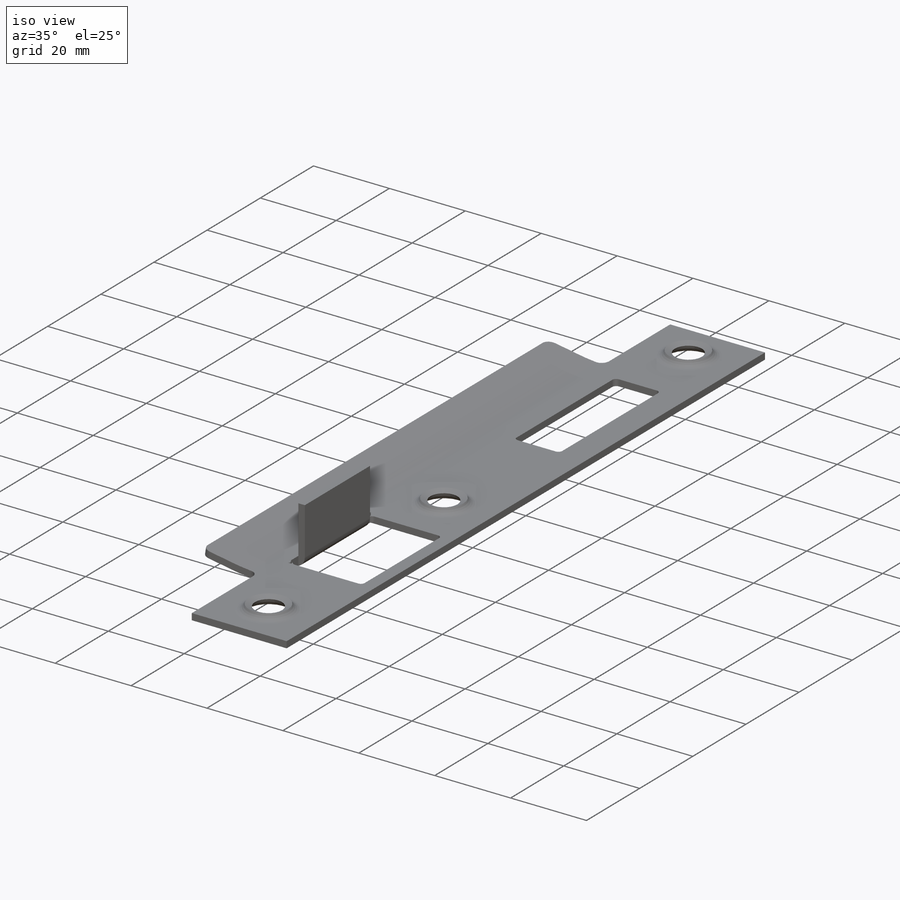
[diagram: iso view]
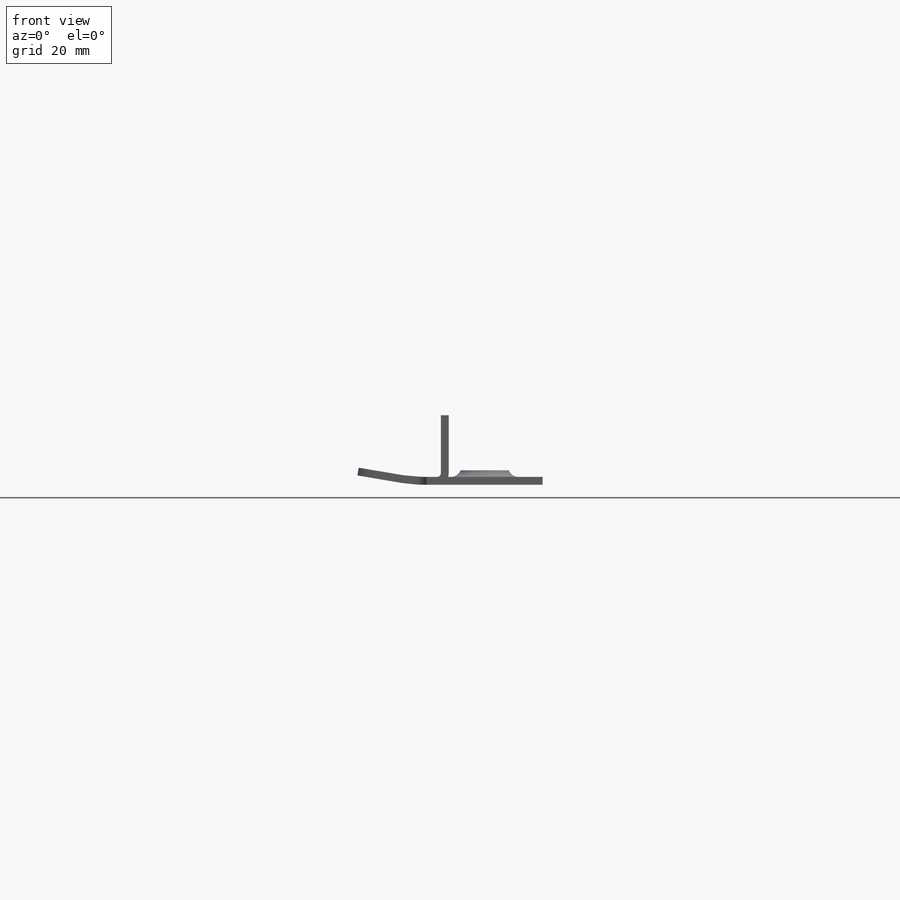
[diagram: front view]
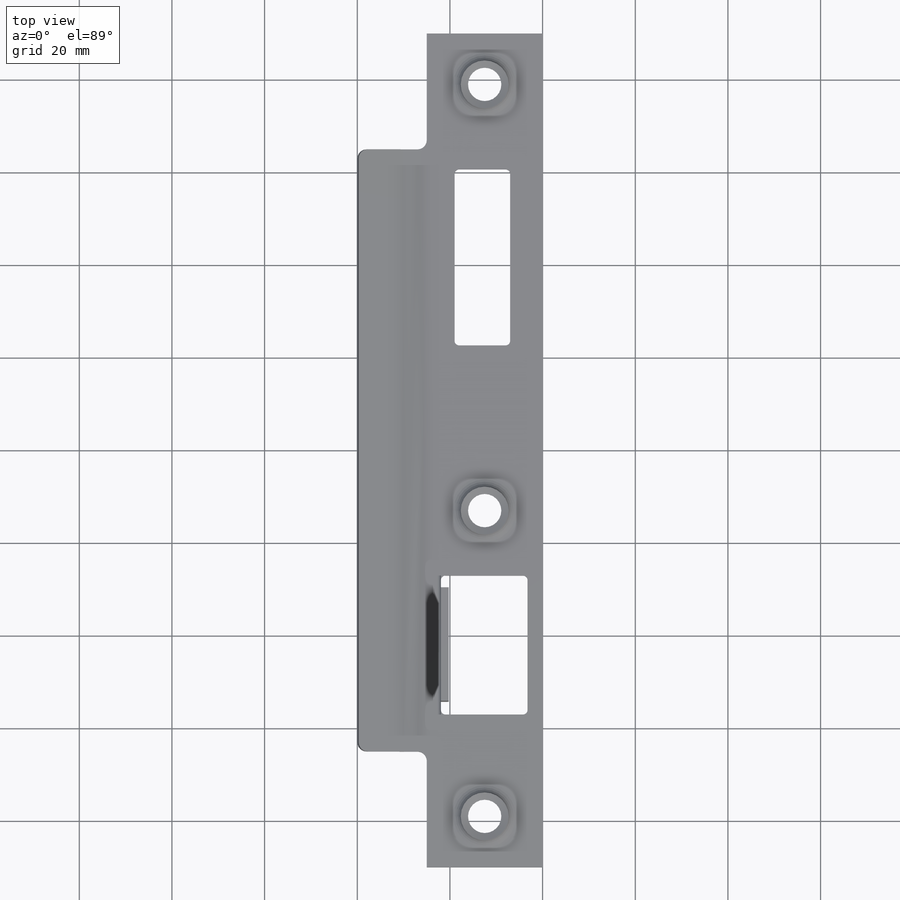
[diagram: top view]
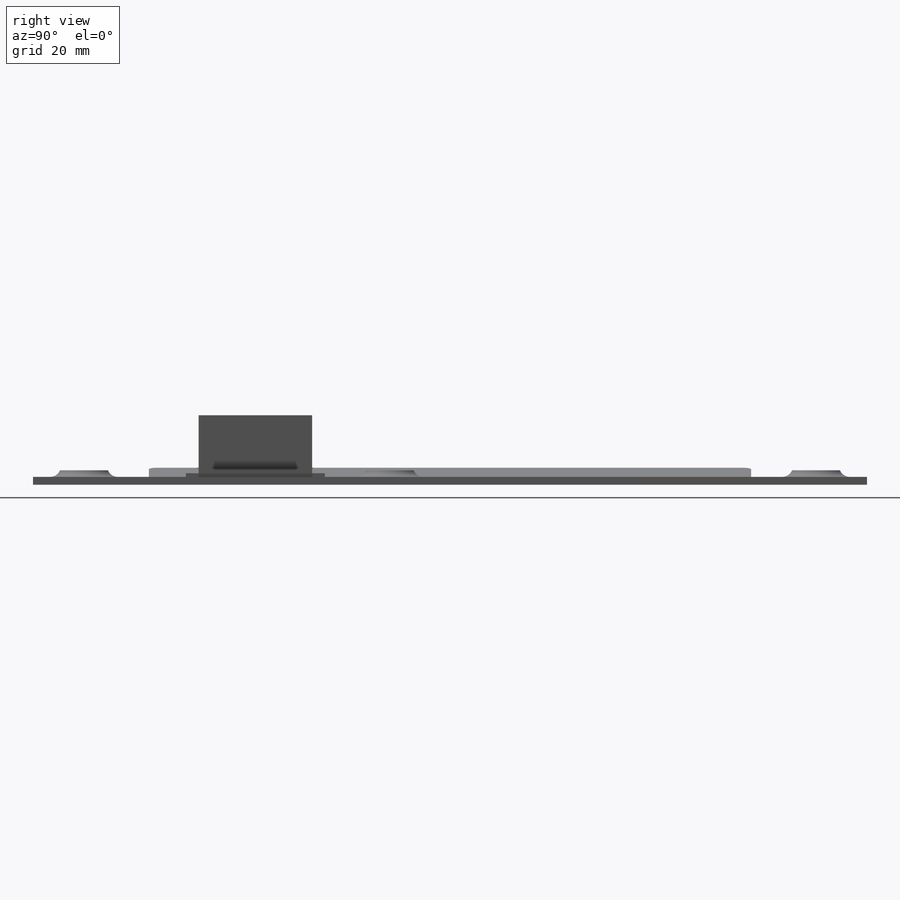
[diagram: right view]
SOLIDWORKS PART (.sldprt)
format: sldprt  version: not decoded by parser v0  size: 903,680 bytes
history: native  units: mm
features: sketch x19, plane x9, cut_extrude x5, fillet x4, material x3, extrude x3, pattern_linear x2, sheet_metal_op x1, revolve x1 + 1 further entry (+23 scaffold rows collapsed)
feature tree (71):
  scaffold x23  (default folders/planes/origin — collapsed)
  material  "Alliage 7079"
  material  "Solid Bodies(1)"
  material  "Solid Bodies"
  plane  "Face"
  plane  "Dessus"
  plane  "Droite"
  sketch  "Esquisse2"  dims[c1.D1=~84.615166mm c2.D1=28.0mm c2.D2=12.0mm c2.D3=2.0mm c3.D1=130.0mm c3.Epaisseur=1.7mm c3.D6=1.0mm c3.D7=5.0mm]
  sketch  "Esquisse10"  dims[c1.D1=25.0mm c2.D1=25.0mm c2.D6=1.0mm c2.D7=5.0mm]
  sketch  "Esquisse9"  dims[c1.D1=25.0mm c2.D1=25.0mm c2.D6=1.0mm c2.D7=5.0mm]
  sheet_metal_op  "Tôlerie 1"
  sketch  "Esquisse-Angle1"  dims[D1=0.0mm]
  sketch  "Esquisse-Plate1"  dims[D1=17.0mm D2=500.0mm D3=0.0mm]
  sketch  "Esquisse23"  dims[D1=11.0mm D2=12.5mm]
  plane  "Plane1"
  plane  "Plane2"
  plane  "Plane3"
  sketch  "Sketch1"  dims[D1=50.0mm D2=1.0mm]
  extrude  "Base-Extrude"  Depth=50mm
  sketch  "Sketch2"  dims[Large Diameter=9.0mm Height from Drop Face=2.5mm D3=~6.198008mm Countersink Half Angle=20.0deg D1=~3.590074mm]
  revolve  "Boss-Revolve1"  Angle=360deg Large Diameter=9mm
  fillet  "Fillet1"  Radius=4mm Fillet Radius=4mm
  sketch  "Sketch3"  dims[D1=0.0mm]
  cut_extrude  "Cut-Extrude1"  [1 undecoded]
  sketch  "Orientation sketch"  dims[D1=0.0mm]
  pattern_linear  "Répétition linéaire1"  Count1=2 Count2=1 Spacing1=92mm Spacing2=50mm
  pattern_linear  "Répétition linéaire2"  Count1=2 Count2=1 Spacing1=158mm Spacing2=50mm
  sketch  "Esquisse34"  dims[D1=13.0mm D2=48.0mm]
  plane  "Plane1"
  plane  "Plane2"
  plane  "Plane3"
  sketch  "Sketch1"  dims[D1=50.0mm D2=5.0mm]
  extrude  "Base-Extrude"  Depth=50mm
  sketch  "Lance Tool sketch"  dims[Height from Drop Face=17.0mm D2=8.0mm]
  extrude  "Lance Tool"  Depth=30mm
  fillet  "Fillet"  Radius=2.5mm Fillet Radius=2.5mm
  sketch  "Sketch3"  dims[D1=0.0mm]
  cut_extrude  "Cut-Extrude1"  [1 undecoded]
  sketch  "Orientation sketch"  dims[D1=0.0mm]
  sketch  "Esquisse35"  dims[c1.D1=13.0mm c1.D2=~35.932244mm c1.D3=~8.05117mm c1.D4=~10.460025mm c2.D2=~43.983415mm c2.D3=~18.94883mm]
  cut_extrude  "Enlèv. mat.-Extru.14"  [1 undecoded]
  sketch  "Esquisse37"  dims[D1=2.75mm D2=2.75mm D3=~2.320923mm D4=~16.028935mm]
  cut_extrude  "Enlèv. mat.-Extru.16"  [1 undecoded]
  sketch  "Esquisse40"  dims[D1=38.0mm D2=12.0mm D3=7.0mm]
  cut_extrude  "Enlèv. mat.-Extru.17"  Depth=1.7mm
  fillet  "Congé1"  Radius=1mm
  fillet  "Congé2"  Radius=2mm
  "Etat déplié2"
  sketch  "Lignes de pliage2"
decode coverage: 29 of 35 modeling features carry decoded parameters; 1 rows unclassified (native names shown)
note: ~ marks probable driven/reference dimensions
note: 4 parameter values undecoded
summary: no parameter record found for 4 features
note: suppression state not decoded; provenance and decode notes live in map.json
